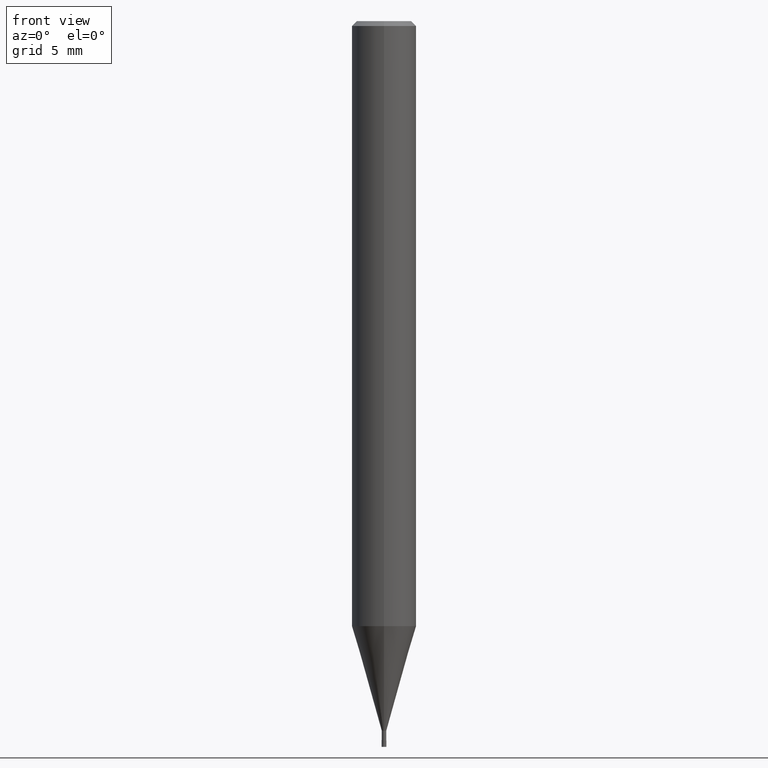
[diagram: clean part render]
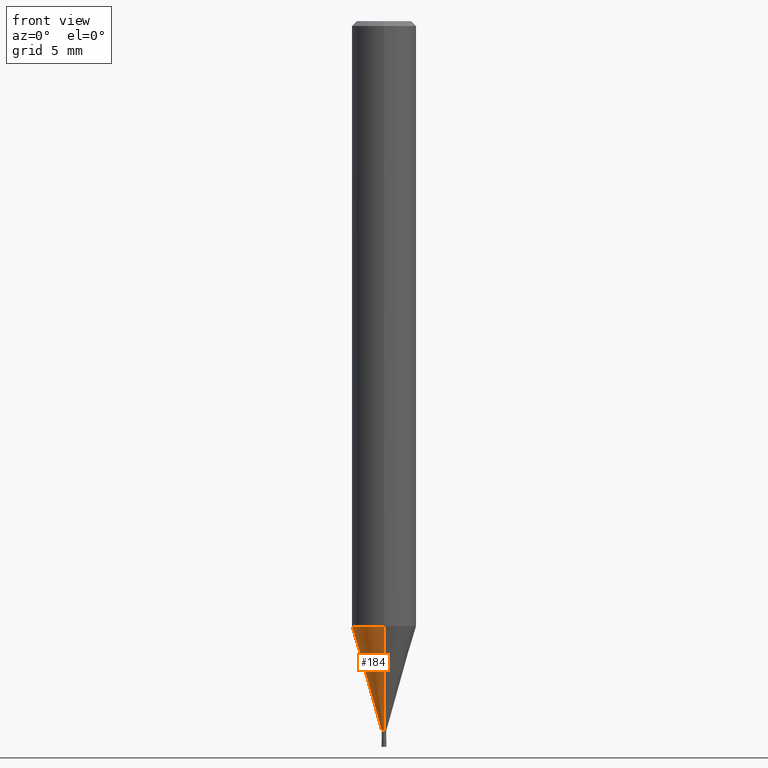
[diagram: same view with one face highlighted and labeled with its STEP entity id]
A machine part, front view. The second image highlights one B-rep face of the part: STEP entity #184.
In plain terms, the highlighted conical surface has half-angle 15.999 deg.
Its self-contained STEP definition (entity closure, byte-faithful):
#102=VERTEX_POINT('',#239);
#104=EDGE_CURVE('',#126,#134,#241,.T.);
#126=VERTEX_POINT('',#265);
#130=VERTEX_POINT('',#269);
#134=VERTEX_POINT('',#274);
#138=EDGE_CURVE('',#102,#134,#278,.T.);
#184=ADVANCED_FACE('',(#333),#334,.T.);
#186=EDGE_CURVE('',#126,#130,#336,.T.);
#192=EDGE_CURVE('',#130,#102,#343,.T.);
#239=CARTESIAN_POINT('',(0.0,1.99995,-37.513));
#241=CIRCLE('',#391,0.13995);
#265=CARTESIAN_POINT('',(1.71383659217442E-017,-0.13995,-44.0));
#269=CARTESIAN_POINT('',(2.44915147732706E-016,-1.99995,-37.513));
#274=CARTESIAN_POINT('',(0.0,0.13995,-44.0));
#278=LINE('',#438,#439);
#333=FACE_OUTER_BOUND('',#505,.T.);
#334=CONICAL_SURFACE('',#506,1.06995,0.27923596926092);
#336=LINE('',#509,#510);
#343=CIRCLE('',#519,1.99995);
#391=AXIS2_PLACEMENT_3D('',#548,#549,#550);
#438=CARTESIAN_POINT('',(-1.31026756827225E-016,1.06995,-40.7565));
#439=VECTOR('',#595,1.0);
#505=EDGE_LOOP('',(#670,#671,#672,#673));
#506=AXIS2_PLACEMENT_3D('',#674,#675,#676);
#509=CARTESIAN_POINT('',(1.31026756827225E-016,-1.06995,-40.7565));
#510=VECTOR('',#677,1.0);
#519=AXIS2_PLACEMENT_3D('',#689,#690,#691);
#548=CARTESIAN_POINT('',(0.0,0.0,-44.0));
#549=DIRECTION('',(0.0,0.0,-1.0));
#550=DIRECTION('',(0.0,1.0,0.0));
#595=DIRECTION('',(3.37527585527933E-017,-0.275621292078393,-0.961266301995986));
#670=ORIENTED_EDGE('',*,*,#138,.T.);
#671=ORIENTED_EDGE('',*,*,#104,.F.);
#672=ORIENTED_EDGE('',*,*,#186,.T.);
#673=ORIENTED_EDGE('',*,*,#192,.T.);
#674=CARTESIAN_POINT('',(0.0,0.0,-40.7565));
#675=DIRECTION('',(-0.0,-0.0,1.0));
#676=DIRECTION('',(0.0,1.0,0.0));
#677=DIRECTION('',(3.37527585527934E-017,-0.275621292078393,0.961266301995986));
#689=CARTESIAN_POINT('',(0.0,0.0,-37.513));
#690=DIRECTION('',(0.0,0.0,-1.0));
#691=DIRECTION('',(0.0,1.0,0.0));